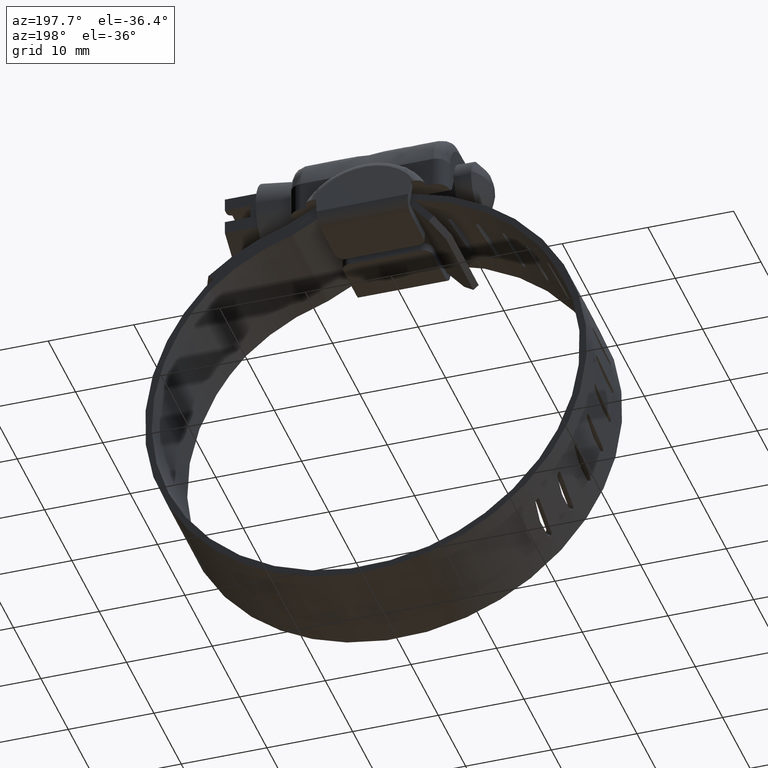
[diagram: clean part render]
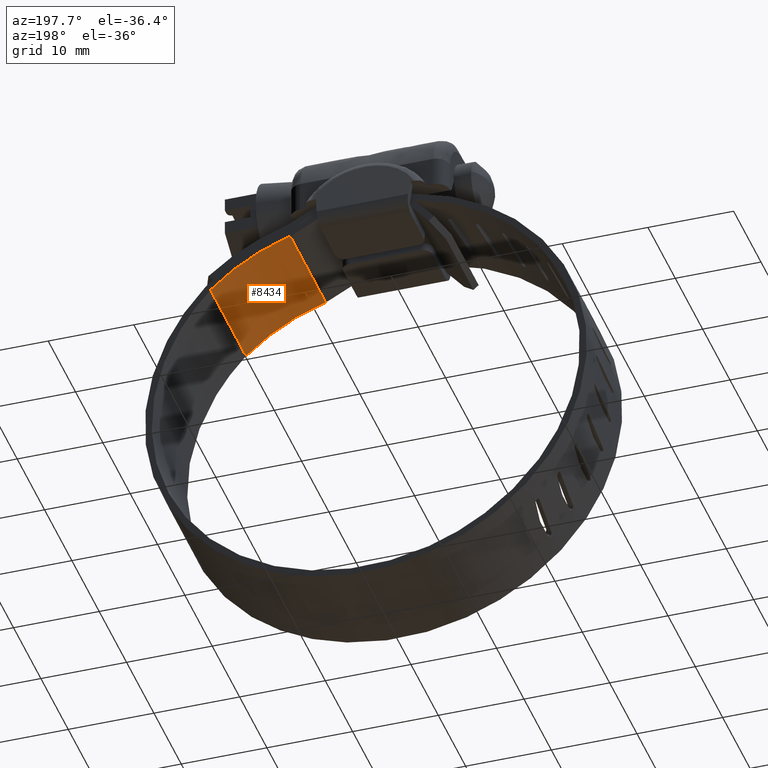
[diagram: same view with one face highlighted and labeled with its STEP entity id]
A machine part, auxiliary view. The second image highlights one B-rep face of the part: STEP entity #8434.
In plain terms, the highlighted face is a freeform B-spline surface patch.
Its self-contained STEP definition (entity closure, byte-faithful):
#8363=CARTESIAN_POINT('',(8.837481516177959,-6.500000000000000,9.435649315678830));
#8364=VERTEX_POINT('',#8363);
#8373=CARTESIAN_POINT('',(8.837481516177959,6.500000000000000,9.435649315678830));
#8374=VERTEX_POINT('',#8373);
#8382=CARTESIAN_POINT('',(8.837481516177959,6.500000000000000,9.435649315678830));
#8383=CARTESIAN_POINT('',(8.837481516177959,-6.500000000000000,9.435649315678830));
#8384=QUASI_UNIFORM_CURVE('',1,(#8382,#8383),.UNSPECIFIED.,.F.,.U.);
#8385=EDGE_CURVE('',#8374,#8364,#8384,.T.);
#8390=CARTESIAN_POINT('',(8.323749465244013,6.824999999999999,9.575887483996072));
#8391=CARTESIAN_POINT('',(8.323749465244013,-6.833125000000000,9.575887483996072));
#8392=CARTESIAN_POINT('',(14.213445394153112,6.825000000000000,8.043284510011889));
#8393=CARTESIAN_POINT('',(14.213445394153112,-6.833125000000002,8.043284510011889));
#8394=CARTESIAN_POINT('',(18.512841495811408,6.825000000000000,3.736013544316894));
#8395=CARTESIAN_POINT('',(18.512841495811408,-6.833125000000000,3.736013544316894));
#8403=(BOUNDED_SURFACE()B_SPLINE_SURFACE(1,2,((#8390,#8392,#8394),(#8391,#8393,#8395)),.UNSPECIFIED.,.F.,.F.,.U.)B_SPLINE_SURFACE_WITH_KNOTS((2,2),(3,3),(0.0,13.658125000000000),(0.0,11.953984813126240),.UNSPECIFIED.)GEOMETRIC_REPRESENTATION_ITEM()RATIONAL_B_SPLINE_SURFACE(((0.998951574939052,0.960798640574829,0.992631408234232),(0.998951574939052,0.960798640574829,0.992631408234232)))REPRESENTATION_ITEM('')SURFACE());
#8404=CARTESIAN_POINT('',(18.129823139356098,-6.500000000000000,4.110642776688275));
#8405=VERTEX_POINT('',#8404);
#8406=CARTESIAN_POINT('',(18.129823139356098,-6.500000000000000,4.110642776688275));
#8407=CARTESIAN_POINT('',(17.437289186379392,-6.499999999999994,4.771994304618497));
#8408=CARTESIAN_POINT('',(15.837306987124981,-6.500000000000004,6.114320800357170));
#8409=CARTESIAN_POINT('',(12.770710165501960,-6.499999999999996,8.029247769470423));
#8410=CARTESIAN_POINT('',(10.299882758400560,-6.499999999999997,9.017892818965709));
#8411=CARTESIAN_POINT('',(8.837481516177959,-6.500000000000000,9.435649315678830));
#8412=B_SPLINE_CURVE_WITH_KNOTS('',3,(#8406,#8407,#8408,#8409,#8410,#8411),.UNSPECIFIED.,.F.,.U.,(4,1,1,4),(2.889175E-009,2.872786776914267,6.252535729542442,10.815197258740170),.UNSPECIFIED.);
#8413=EDGE_CURVE('',#8405,#8364,#8412,.T.);
#8414=ORIENTED_EDGE('',*,*,#8413,.T.);
#8415=ORIENTED_EDGE('',*,*,#8385,.F.);
#8416=CARTESIAN_POINT('',(18.129823139356098,6.500000000000000,4.110642776688275));
#8417=VERTEX_POINT('',#8416);
#8418=CARTESIAN_POINT('',(18.129823139356098,6.500000000000000,4.110642776688275));
#8419=CARTESIAN_POINT('',(17.437289186379392,6.499999999999994,4.771994304618497));
#8420=CARTESIAN_POINT('',(15.837306987124981,6.500000000000004,6.114320800357170));
#8421=CARTESIAN_POINT('',(12.770710165501960,6.499999999999996,8.029247769470423));
#8422=CARTESIAN_POINT('',(10.299882758400560,6.499999999999997,9.017892818965709));
#8423=CARTESIAN_POINT('',(8.837481516177959,6.500000000000000,9.435649315678830));
#8424=B_SPLINE_CURVE_WITH_KNOTS('',3,(#8418,#8419,#8420,#8421,#8422,#8423),.UNSPECIFIED.,.F.,.U.,(4,1,1,4),(2.889175E-009,2.872786776914267,6.252535729542442,10.815197258740170),.UNSPECIFIED.);
#8425=EDGE_CURVE('',#8417,#8374,#8424,.T.);
#8426=ORIENTED_EDGE('',*,*,#8425,.F.);
#8427=CARTESIAN_POINT('',(18.129823139356098,6.500000000000000,4.110642776688275));
#8428=CARTESIAN_POINT('',(18.129823139356098,-6.500000000000000,4.110642776688275));
#8429=QUASI_UNIFORM_CURVE('',1,(#8427,#8428),.UNSPECIFIED.,.F.,.U.);
#8430=EDGE_CURVE('',#8417,#8405,#8429,.T.);
#8431=ORIENTED_EDGE('',*,*,#8430,.T.);
#8432=EDGE_LOOP('',(#8414,#8415,#8426,#8431));
#8433=FACE_OUTER_BOUND('',#8432,.T.);
#8434=ADVANCED_FACE('',(#8433),#8403,.F.);